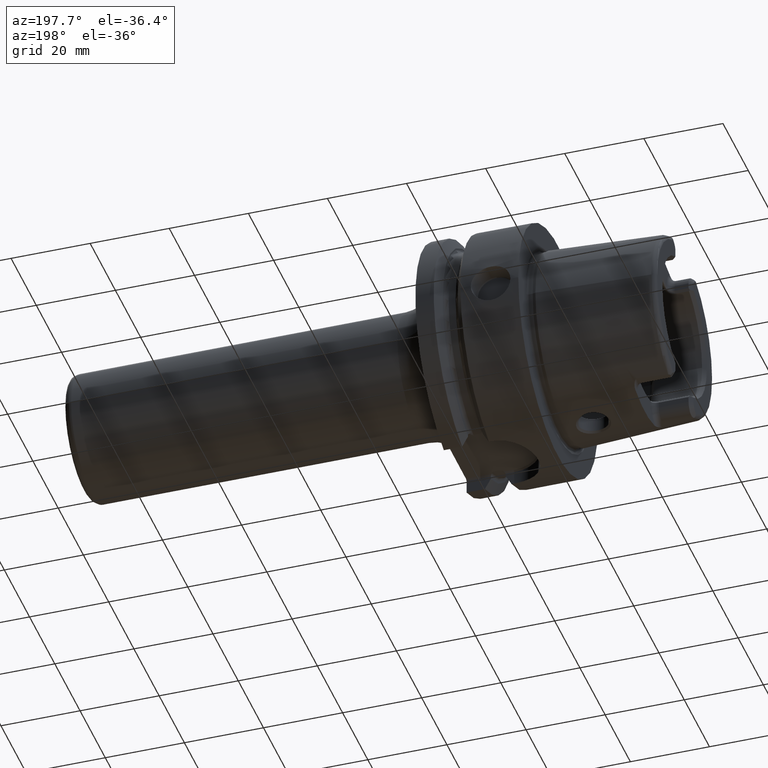
[diagram: clean part render]
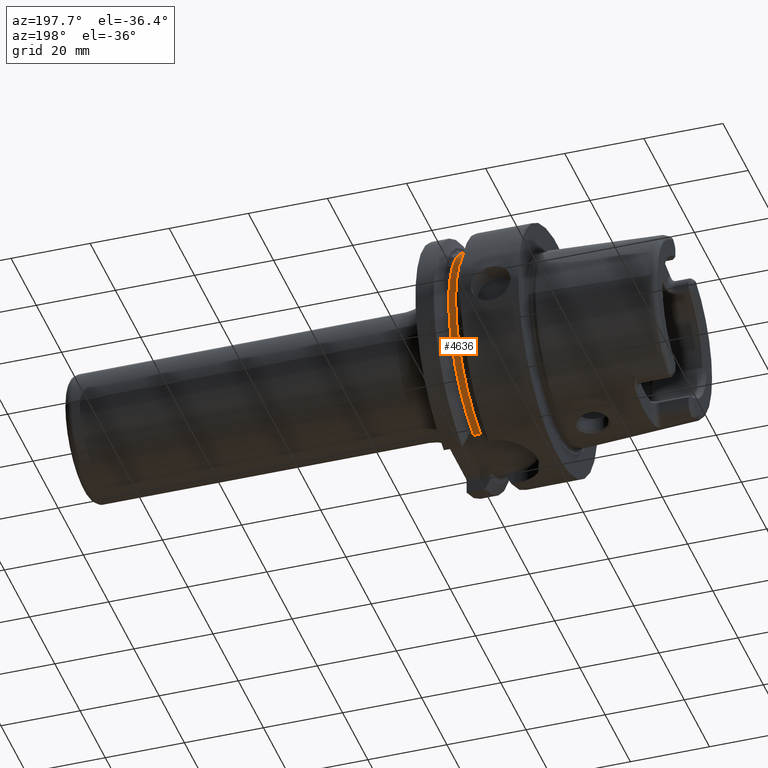
[diagram: same view with one face highlighted and labeled with its STEP entity id]
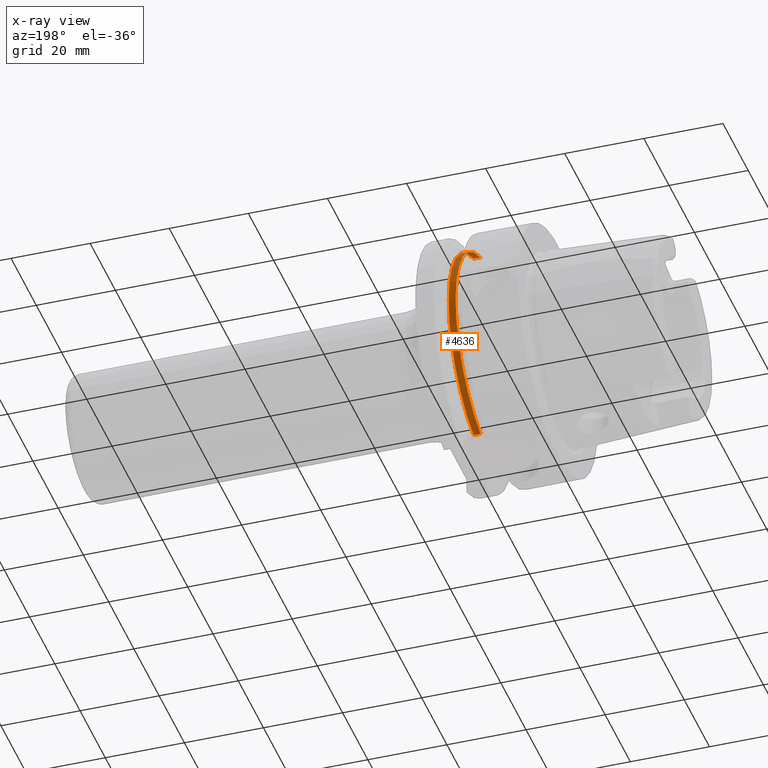
[diagram: x-ray of the same camera — body ghosted, the highlighted face saturated]
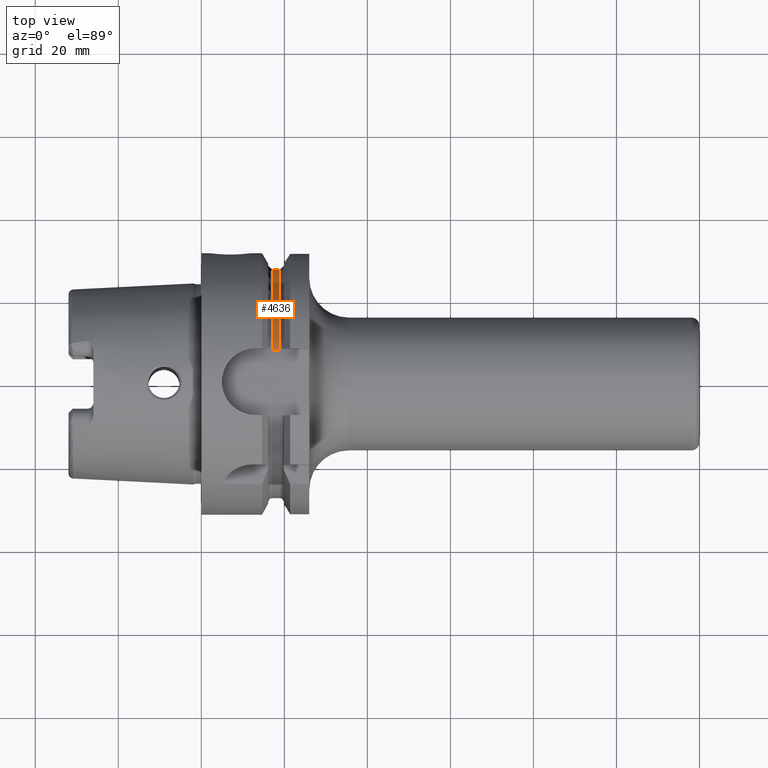
[diagram: same view with one face highlighted and labeled with its STEP entity id]
A machine part, auxiliary view. The second image highlights one B-rep face of the part: STEP entity #4636.
The next image is the same camera in x-ray: the body ghosted, the highlighted face saturated — about 4% of this face is hidden behind the body in this view.
A second angle (top view) of the same face is appended — the face is thin or edge-on in the first view.
In plain terms, the highlighted cylindrical surface (partial cylindrical patch) has radius 27.5 mm, axis along (1, 0, 0).
Its self-contained STEP definition (entity closure, byte-faithful):
#1242=CARTESIAN_POINT('',(1.7125E1,7.7E0,2.64E1));
#1390=CARTESIAN_POINT('',(1.8875E1,0.E0,0.E0));
#1391=DIRECTION('',(-1.E0,0.E0,0.E0));
#1392=DIRECTION('',(0.E0,2.8E-1,9.6E-1));
#1393=AXIS2_PLACEMENT_3D('',#1390,#1391,#1392);
#1495=DIRECTION('',(1.E0,0.E0,0.E0));
#1496=VECTOR('',#1495,1.75E0);
#1497=CARTESIAN_POINT('',(1.7125E1,7.7E0,-2.64E1));
#1498=LINE('',#1497,#1496);
#1499=DIRECTION('',(1.E0,0.E0,0.E0));
#1500=VECTOR('',#1499,1.75E0);
#1501=CARTESIAN_POINT('',(1.7125E1,7.7E0,2.64E1));
#1502=LINE('',#1501,#1500);
#1503=CARTESIAN_POINT('',(1.7125E1,0.E0,0.E0));
#1504=DIRECTION('',(-1.E0,0.E0,0.E0));
#1505=DIRECTION('',(0.E0,2.8E-1,9.6E-1));
#1506=AXIS2_PLACEMENT_3D('',#1503,#1504,#1505);
#2977=VERTEX_POINT('',#1242);
#2979=CARTESIAN_POINT('',(1.8875E1,7.7E0,2.64E1));
#2980=VERTEX_POINT('',#2979);
#3007=CARTESIAN_POINT('',(1.7125E1,7.7E0,-2.64E1));
#3008=CARTESIAN_POINT('',(1.8875E1,7.7E0,-2.64E1));
#3009=VERTEX_POINT('',#3007);
#3010=VERTEX_POINT('',#3008);
#4624=CARTESIAN_POINT('',(1.415E1,0.E0,0.E0));
#4625=DIRECTION('',(1.E0,0.E0,0.E0));
#4626=DIRECTION('',(0.E0,-1.E0,0.E0));
#4627=AXIS2_PLACEMENT_3D('',#4624,#4625,#4626);
#4628=CYLINDRICAL_SURFACE('',#4627,2.75E1);
#4629=ORIENTED_EDGE('',*,*,#4591,.T.);
#4630=ORIENTED_EDGE('',*,*,#4549,.F.);
#4632=ORIENTED_EDGE('',*,*,#4631,.F.);
#4633=ORIENTED_EDGE('',*,*,#4440,.T.);
#4634=EDGE_LOOP('',(#4629,#4630,#4632,#4633));
#4635=FACE_OUTER_BOUND('',#4634,.F.);
#4636=ADVANCED_FACE('',(#4635),#4628,.T.);
#1394=CIRCLE('',#1393,2.75E1);
#1507=CIRCLE('',#1506,2.75E1);
#4440=EDGE_CURVE('',#2977,#3009,#1507,.T.);
#4549=EDGE_CURVE('',#2980,#3010,#1394,.T.);
#4591=EDGE_CURVE('',#3009,#3010,#1498,.T.);
#4631=EDGE_CURVE('',#2977,#2980,#1502,.T.);